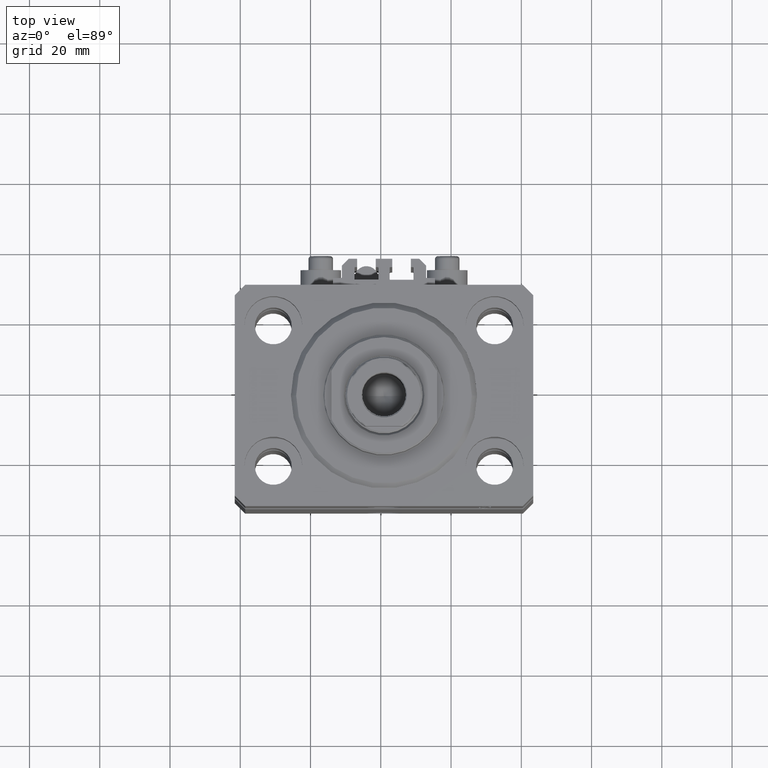
[diagram: clean part render]
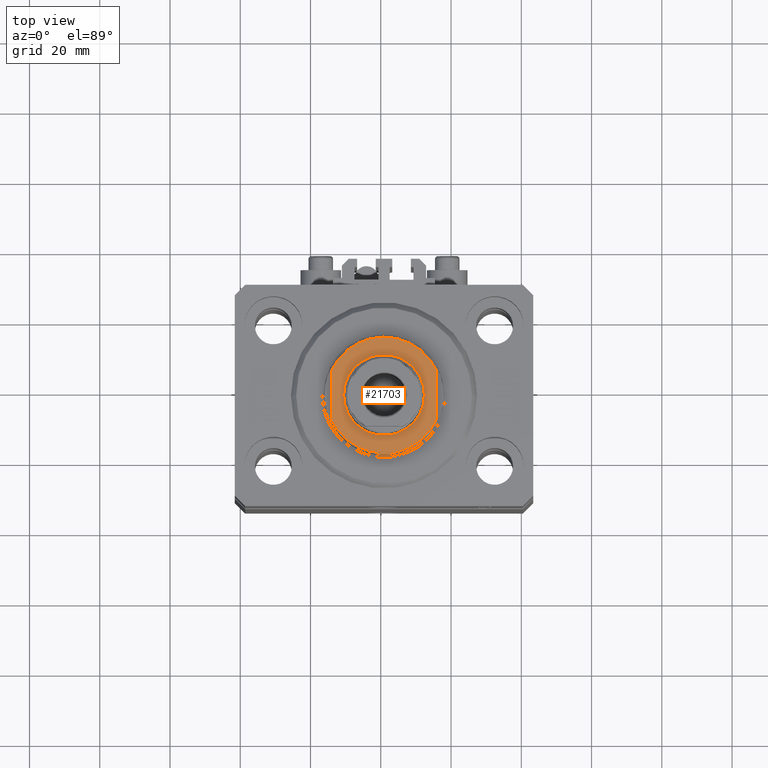
[diagram: same view with one face highlighted and labeled with its STEP entity id]
A machine part, top view. The second image highlights one B-rep face of the part: STEP entity #21703.
In plain terms, the highlighted planar face has unit normal (0, 0, 1).
Its self-contained STEP definition (entity closure, byte-faithful):
#453 = FACE_OUTER_BOUND ( 'NONE', #46279, .T. ) ;
#693 = FACE_BOUND ( 'NONE', #31466, .T. ) ;
#2129 = VERTEX_POINT ( 'NONE', #40342 ) ;
#2207 = CIRCLE ( 'NONE', #16297, 16.50000000000000711 ) ;
#2353 = DIRECTION ( 'NONE',  ( 0.000000000000000000, 0.000000000000000000, -1.000000000000000000 ) ) ;
#2490 = AXIS2_PLACEMENT_3D ( 'NONE', #39385, #13468, #25216 ) ;
#4318 = VERTEX_POINT ( 'NONE', #35735 ) ;
#4956 = VECTOR ( 'NONE', #46023, 1000.000000000000000 ) ;
#6096 = VERTEX_POINT ( 'NONE', #36564 ) ;
#11722 = VERTEX_POINT ( 'NONE', #15643 ) ;
#11793 = VERTEX_POINT ( 'NONE', #12461 ) ;
#12334 = ORIENTED_EDGE ( 'NONE', *, *, #44829, .F. ) ;
#12461 = CARTESIAN_POINT ( 'NONE',  ( -11.49999999999999645, 0.000000000000000000, -7.000000000000000000 ) ) ;
#12787 = EDGE_CURVE ( 'NONE', #4318, #2129, #2207, .T. ) ;
#13171 = ORIENTED_EDGE ( 'NONE', *, *, #12787, .T. ) ;
#13468 = DIRECTION ( 'NONE',  ( -0.000000000000000000, -0.000000000000000000, 1.000000000000000000 ) ) ;
#14259 = VERTEX_POINT ( 'NONE', #43926 ) ;
#14339 = LINE ( 'NONE', #20589, #4956 ) ;
#15627 = PLANE ( 'NONE',  #18838 ) ;
#15643 = CARTESIAN_POINT ( 'NONE',  ( 11.49999999999999645, 1.408343819019455781E-15, -7.000000000000000000 ) ) ;
#16297 = AXIS2_PLACEMENT_3D ( 'NONE', #41576, #22770, #34716 ) ;
#16539 = CIRCLE ( 'NONE', #2490, 11.49999999999999645 ) ;
#17485 = ORIENTED_EDGE ( 'NONE', *, *, #29919, .T. ) ;
#18838 = AXIS2_PLACEMENT_3D ( 'NONE', #37655, #41307, #33244 ) ;
#20589 = CARTESIAN_POINT ( 'NONE',  ( -15.00000000000000000, -42.42640687119285303, -7.000000000000000000 ) ) ;
#20681 = CIRCLE ( 'NONE', #36273, 11.49999999999999645 ) ;
#21703 = ADVANCED_FACE ( 'NONE', ( #693, #453 ), #15627, .T. ) ;
#22770 = DIRECTION ( 'NONE',  ( 0.000000000000000000, 0.000000000000000000, -1.000000000000000000 ) ) ;
#23636 = DIRECTION ( 'NONE',  ( 0.000000000000000000, -1.000000000000000000, -0.000000000000000000 ) ) ;
#24284 = EDGE_CURVE ( 'NONE', #6096, #14259, #47047, .T. ) ;
#25216 = DIRECTION ( 'NONE',  ( -1.000000000000000000, 0.000000000000000000, 0.000000000000000000 ) ) ;
#27619 = ORIENTED_EDGE ( 'NONE', *, *, #24284, .T. ) ;
#28053 = CARTESIAN_POINT ( 'NONE',  ( 0.000000000000000000, 0.000000000000000000, -7.000000000000000000 ) ) ;
#29919 = EDGE_CURVE ( 'NONE', #11793, #11722, #20681, .T. ) ;
#31466 = EDGE_LOOP ( 'NONE', ( #17485, #44532 ) ) ;
#32108 = VECTOR ( 'NONE', #23636, 1000.000000000000000 ) ;
#33244 = DIRECTION ( 'NONE',  ( -1.000000000000000000, 0.000000000000000000, -0.000000000000000000 ) ) ;
#34716 = DIRECTION ( 'NONE',  ( -1.000000000000000000, 0.000000000000000000, 0.000000000000000000 ) ) ;
#35250 = CARTESIAN_POINT ( 'NONE',  ( 0.000000000000000000, 0.000000000000000000, -7.000000000000000000 ) ) ;
#35735 = CARTESIAN_POINT ( 'NONE',  ( -14.99999999999999645, 6.873863542433781504, -7.000000000000000000 ) ) ;
#36273 = AXIS2_PLACEMENT_3D ( 'NONE', #35250, #46294, #46772 ) ;
#36564 = CARTESIAN_POINT ( 'NONE',  ( 14.99999999999999645, -6.873863542433781504, -7.000000000000000000 ) ) ;
#37655 = CARTESIAN_POINT ( 'NONE',  ( 0.000000000000000000, 0.000000000000000000, -7.000000000000000000 ) ) ;
#38051 = CARTESIAN_POINT ( 'NONE',  ( 15.00000000000000000, -42.42640687119285303, -7.000000000000000000 ) ) ;
#39385 = CARTESIAN_POINT ( 'NONE',  ( 0.000000000000000000, 0.000000000000000000, -7.000000000000000000 ) ) ;
#40285 = EDGE_CURVE ( 'NONE', #2129, #6096, #41475, .T. ) ;
#40342 = CARTESIAN_POINT ( 'NONE',  ( 14.99999999999999645, 6.873863542433781504, -7.000000000000000000 ) ) ;
#40630 = EDGE_CURVE ( 'NONE', #11722, #11793, #16539, .T. ) ;
#41307 = DIRECTION ( 'NONE',  ( 0.000000000000000000, 0.000000000000000000, -1.000000000000000000 ) ) ;
#41475 = LINE ( 'NONE', #38051, #32108 ) ;
#41576 = CARTESIAN_POINT ( 'NONE',  ( 0.000000000000000000, 0.000000000000000000, -7.000000000000000000 ) ) ;
#42966 = DIRECTION ( 'NONE',  ( -1.000000000000000000, 0.000000000000000000, 0.000000000000000000 ) ) ;
#43926 = CARTESIAN_POINT ( 'NONE',  ( -15.00000000000000000, -6.873863542433783280, -7.000000000000000000 ) ) ;
#44532 = ORIENTED_EDGE ( 'NONE', *, *, #40630, .T. ) ;
#44829 = EDGE_CURVE ( 'NONE', #4318, #14259, #14339, .T. ) ;
#46023 = DIRECTION ( 'NONE',  ( -0.000000000000000000, -1.000000000000000000, -0.000000000000000000 ) ) ;
#46065 = ORIENTED_EDGE ( 'NONE', *, *, #40285, .T. ) ;
#46279 = EDGE_LOOP ( 'NONE', ( #13171, #46065, #27619, #12334 ) ) ;
#46294 = DIRECTION ( 'NONE',  ( -0.000000000000000000, -0.000000000000000000, 1.000000000000000000 ) ) ;
#46772 = DIRECTION ( 'NONE',  ( -1.000000000000000000, 0.000000000000000000, 0.000000000000000000 ) ) ;
#47012 = AXIS2_PLACEMENT_3D ( 'NONE', #28053, #2353, #42966 ) ;
#47047 = CIRCLE ( 'NONE', #47012, 16.50000000000000711 ) ;